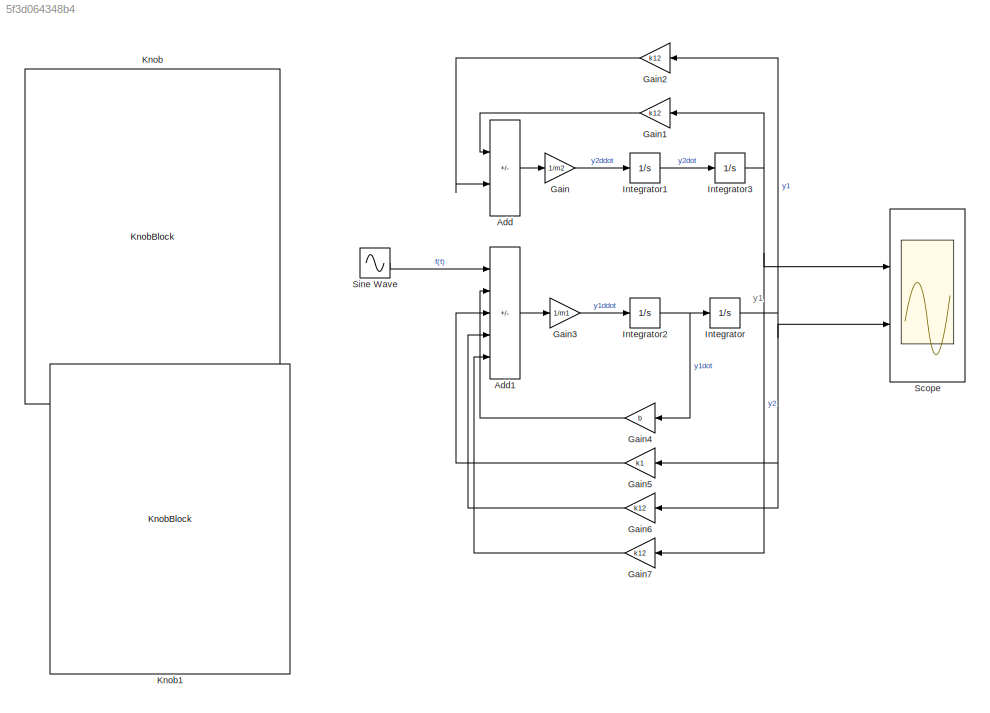
MODEL slx_5f3d064348b4
KIND model
CONFIG AbsTol = auto
CONFIG EnableMultiTasking = off
CONFIG FixedStep = auto
CONFIG MaxStep = auto
CONFIG MinStep = auto
CONFIG RelTol = 1e-3
CONFIG SampleTimeConstraint = Unconstrained
CONFIG SolverName = VariableStepAuto
CONFIG StartTime = 0.0
CONFIG StopTime = 10.0
WORKSPACE source: mxarray member
WORKSPACE K12: Simulink.Parameter (value not decoded)
WORKSPACE Sig: Simulink.Signal (value not decoded)
WORKSPACE m2: Simulink.Parameter (value not decoded)
BLOCK [Sum] Add
  IconShape = rectangular
  Inputs = -+
  Ports = [2, 1]
BLOCK [Sum] Add1
  IconShape = rectangular
  Inputs = +---+
  Ports = [5, 1]
BLOCK [Gain] Gain
  Gain = 1/m2
BLOCK [Gain] Gain1
  Gain = k12
  NameLocation = top
  ParamMax = 10000
  ParamMin = -500
BLOCK [Gain] Gain2
  Gain = k12
  NameLocation = top
BLOCK [Gain] Gain3
  Gain = 1/m1
BLOCK [Gain] Gain4
  Gain = b
  NameLocation = top
BLOCK [Gain] Gain5
  Gain = k1
  NameLocation = top
BLOCK [Gain] Gain6
  Gain = k12
  NameLocation = top
BLOCK [Gain] Gain7
  Gain = k12
  NameLocation = top
BLOCK [Integrator] Integrator
  Ports = [1, 1]
BLOCK [Integrator] Integrator1
  IgnoreLimit = on
  InitialCondition = 1
  Ports = [1, 1]
BLOCK [Integrator] Integrator2
  Ports = [1, 1]
BLOCK [Integrator] Integrator3
  Ports = [1, 1]
BLOCK [KnobBlock] Knob
  ScaleMax = 10000
  ScaleMin = -500
BLOCK [KnobBlock] Knob1
BLOCK [Scope] Scope
  Floating = off
  NumInputPorts = 2
  Ports = [2]
  ScopeSpecificationString = Simulink.scopes.TimeScopeBlockCfg('CurrentConfiguration', extmgr.ConfigurationSet(extmgr.Configuration('Core','General UI',true),extmgr.Configuration('Core','Source UI',true),extmgr.Configuration('Sources','WiredSimulink',true),extmgr.Configuration('Visuals','Time Domain',true,'SerializedDisplays',{struct('MinYLimReal','-0.07297','MaxYLimReal','0.13501','YLabelReal','','MinYLimMag','0.00000','MaxY...<+2007ch>
BLOCK [Sin] Sine Wave
  Amplitude = 2
  Frequency = 10
  Ports = [0, 1]
  SampleTime = 0
ANNOTATION (root): y1
LINE Add1:1 -> Gain3:1
LINE Add:1 -> Gain:1
LINE Gain1:1 -> Add:1
LINE Gain2:1 -> Add:2
LINE Gain3:1 -> Integrator2:1
LINE Gain4:1 -> Add1:2
LINE Gain5:1 -> Add1:3
LINE Gain6:1 -> Add1:4
LINE Gain7:1 -> Add1:5
LINE Gain:1 -> Integrator1:1
LINE Integrator1:1 -> Integrator3:1
NET Integrator2:1 -> Gain4:1, Integrator:1
NET Integrator3:1 -> Gain1:1, Gain7:1, Scope:1
NET Integrator:1 -> Gain2:1, Gain5:1, Gain6:1, Scope:2
LINE Sine Wave:1 -> Add1:1
note: NET lines group one-source signal fan-out (src -> all destinations, sorted); 1:1 wires keep LINE
